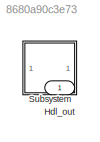
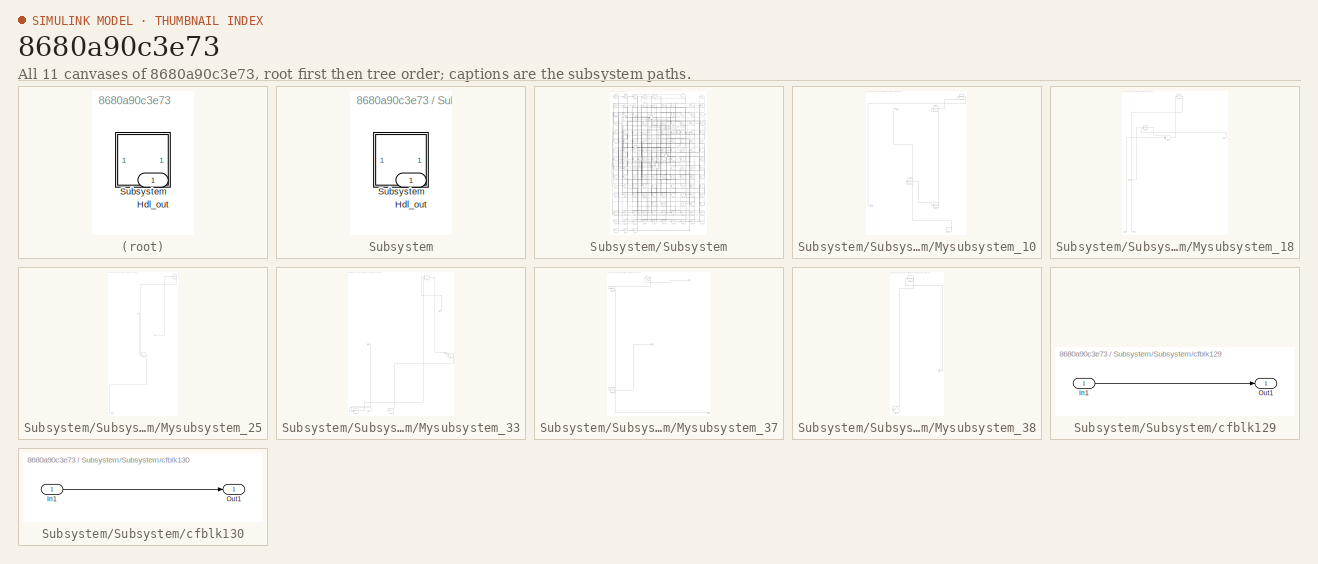
[diagram: thumbnail index - all 11 canvases of the model, root first then tree order]
MODEL slx_8680a90c3e73
KIND model
CONFIG AbsTol = auto
CONFIG EnableMultiTasking = off
CONFIG FixedStep = auto
CONFIG MaxStep = auto
CONFIG MinStep = auto
CONFIG RelTol = 1e-3
CONFIG SampleTimeConstraint = Unconstrained
CONFIG SolverName = VariableStepAuto
CONFIG StartTime = 0.0
CONFIG StopTime = 10.0
BLOCK [Outport] Hdl_out
  OutDataTypeStr = uint8
BLOCK [SubSystem] Subsystem
BLOCK [Outport] Subsystem/Hdl_out
  OutDataTypeStr = uint8
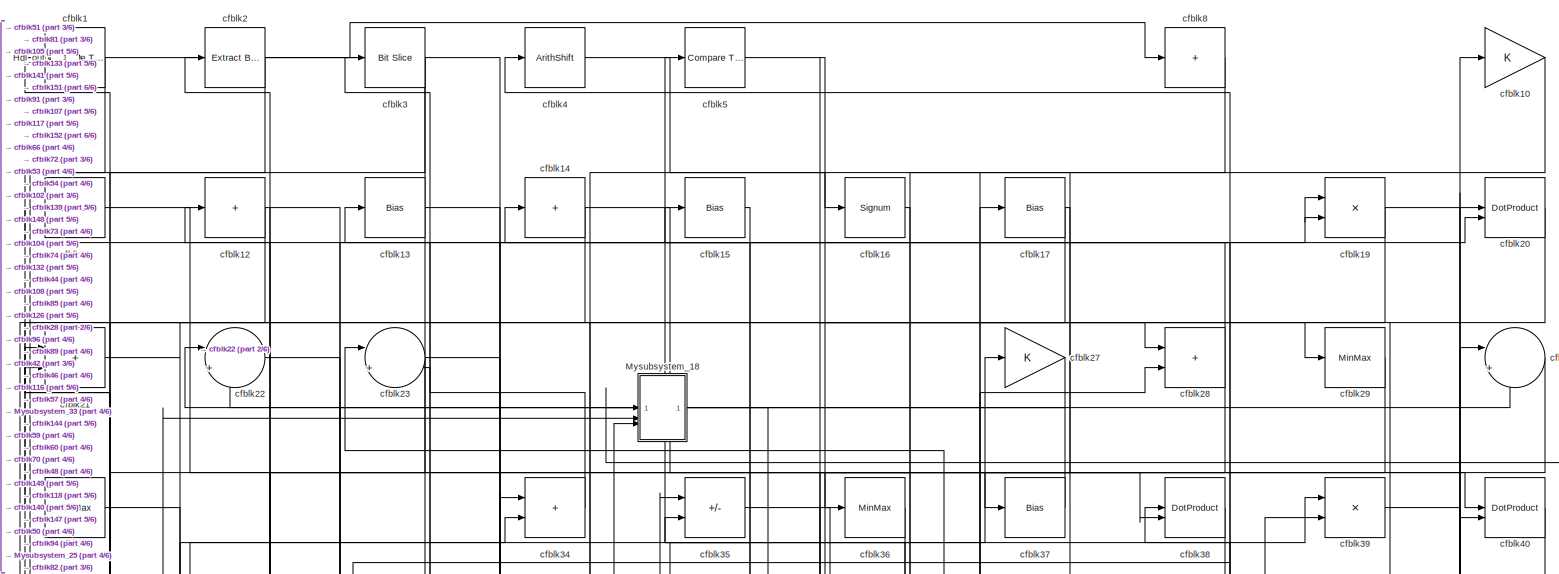
[diagram: Subsystem/Subsystem - part 1/6, full width, top band]
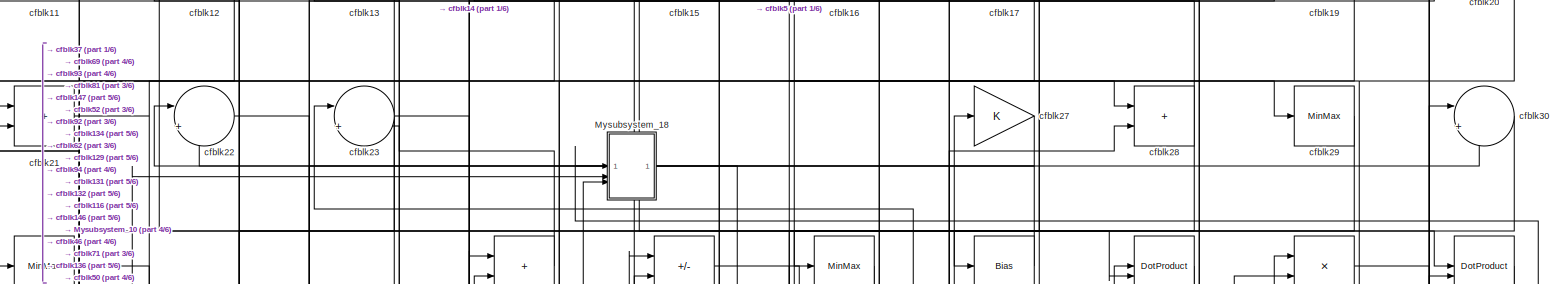
[diagram: Subsystem/Subsystem - part 2/6, full width, top band]
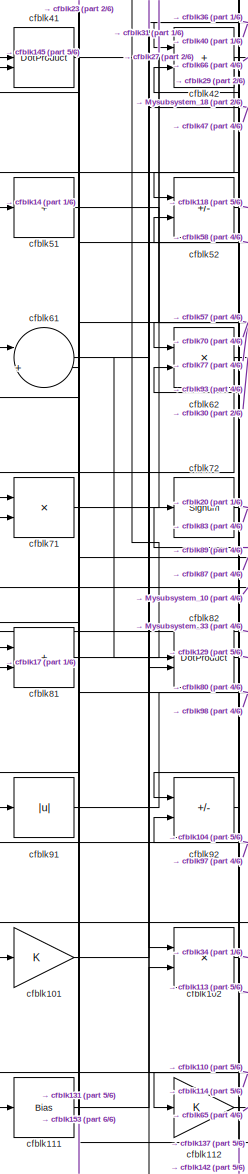
[diagram: Subsystem/Subsystem - part 3/6, middle left region]
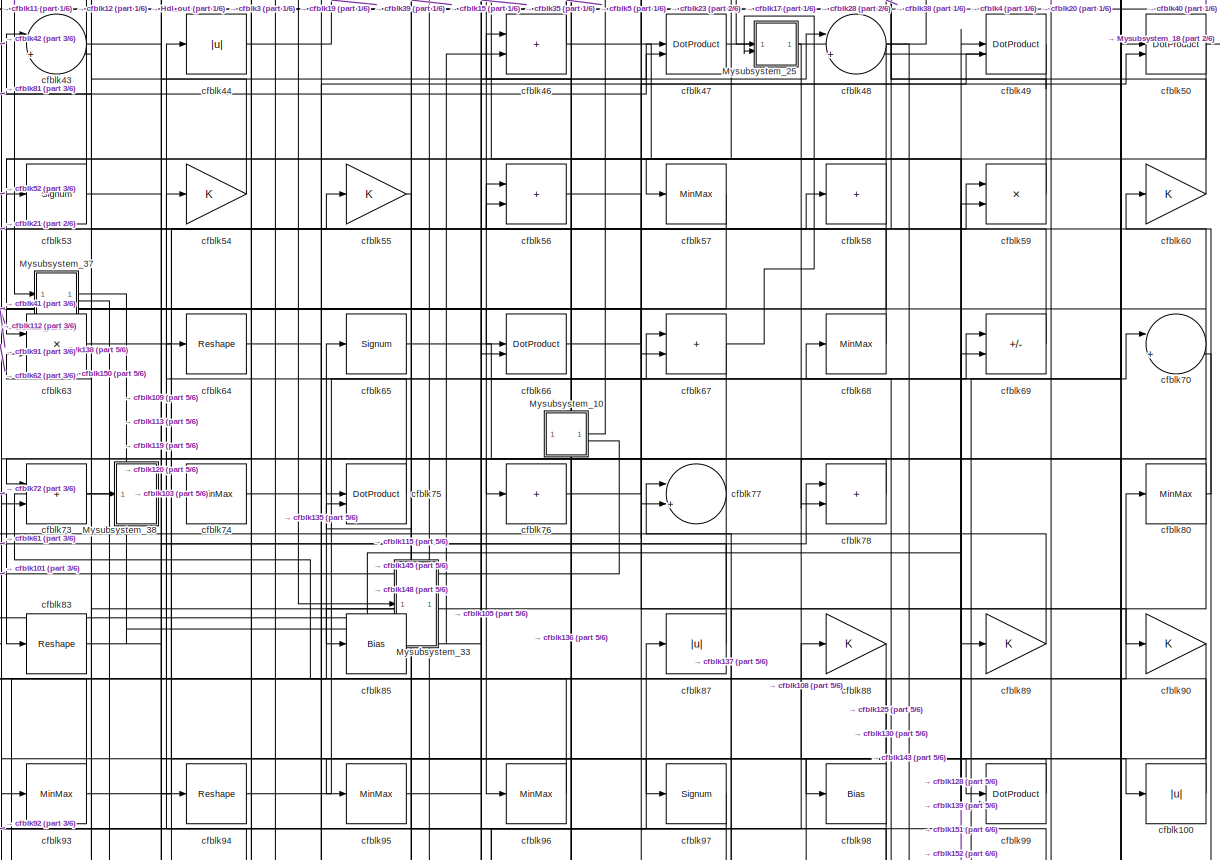
[diagram: Subsystem/Subsystem - part 4/6, full width, middle band]
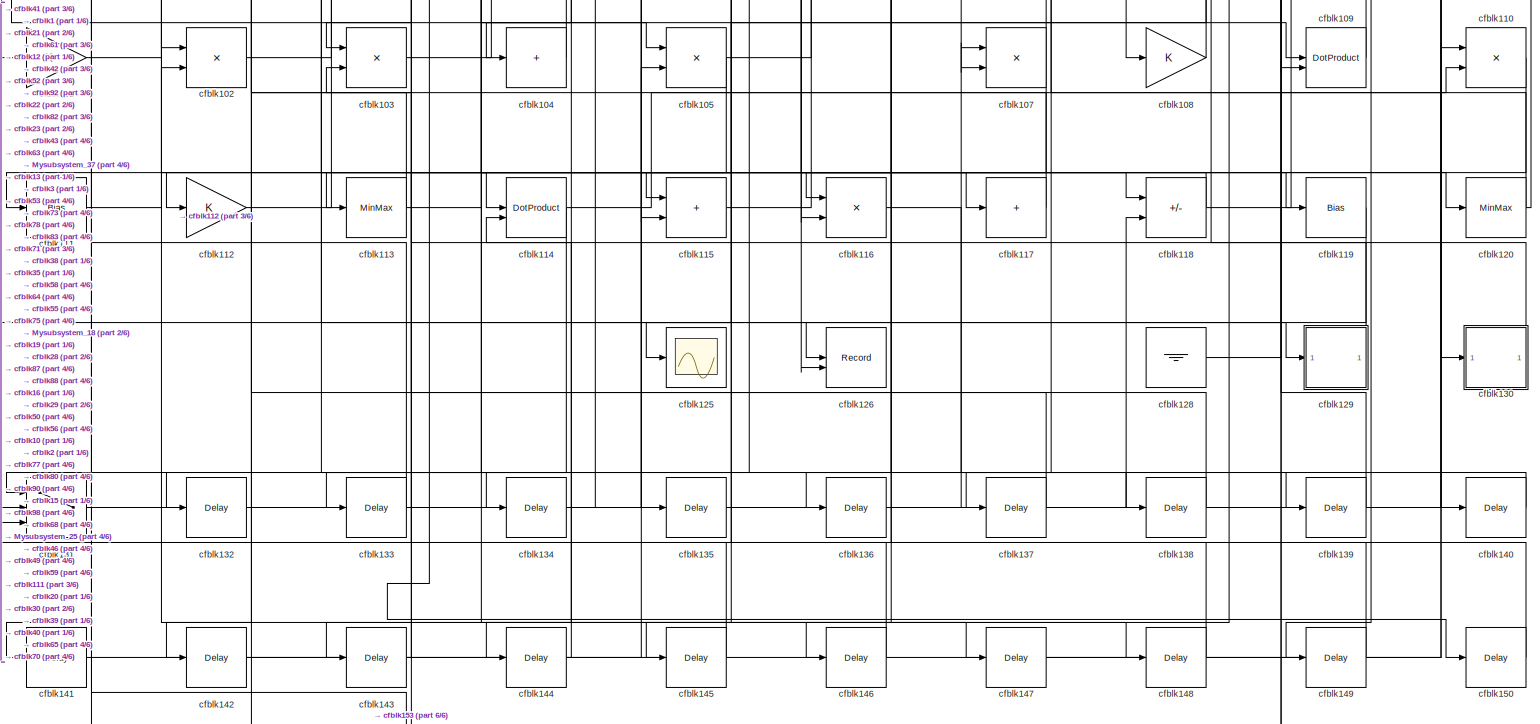
[diagram: Subsystem/Subsystem - part 5/6, full width, bottom band]
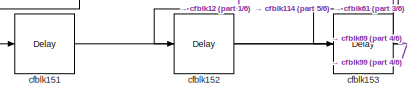
[diagram: Subsystem/Subsystem - part 6/6, bottom left region]
BLOCK [SubSystem] Subsystem/Subsystem
BLOCK [Outport] Subsystem/Subsystem/Hdl_out
  OutDataTypeStr = uint8
BLOCK [SubSystem] Subsystem/Subsystem/Mysubsystem_10
  RTWFcnName = Mysubsystem_10
  RTWFcnNameOpts = User specified
  RTWFileNameOpts = Use function name
  RTWSystemCode = Reusable function
  TreatAsAtomicUnit = on
BLOCK [Outport] Subsystem/Subsystem/Mysubsystem_10/Out1
BLOCK [Outport] Subsystem/Subsystem/Mysubsystem_10/Out2
  Port = 2
BLOCK [MinMax] Subsystem/Subsystem/Mysubsystem_10/cfblk106
BLOCK [Constant] Subsystem/Subsystem/Mysubsystem_10/cfblk127
  SampleTime = -1
BLOCK [MinMax] Subsystem/Subsystem/Mysubsystem_10/cfblk18
BLOCK [Reshape] Subsystem/Subsystem/Mysubsystem_10/cfblk26
BLOCK [MinMax] Subsystem/Subsystem/Mysubsystem_10/cfblk84
BLOCK [SubSystem] Subsystem/Subsystem/Mysubsystem_18
  RTWFcnName = Mysubsystem_18
  RTWFcnNameOpts = User specified
  RTWFileNameOpts = Use function name
  RTWSystemCode = Reusable function
  TreatAsAtomicUnit = on
BLOCK [Inport] Subsystem/Subsystem/Mysubsystem_18/In1
BLOCK [Inport] Subsystem/Subsystem/Mysubsystem_18/In2
  Port = 2
BLOCK [Inport] Subsystem/Subsystem/Mysubsystem_18/In3
  Port = 3
BLOCK [Outport] Subsystem/Subsystem/Mysubsystem_18/Y
BLOCK [DotProduct] Subsystem/Subsystem/Mysubsystem_18/cfblk33
  OutDataTypeStr = Inherit: Inherit via internal rule
BLOCK [Sum] Subsystem/Subsystem/Mysubsystem_18/cfblk45
  IconShape = rectangular
BLOCK [Reference] Subsystem/Subsystem/Mysubsystem_18/cfblk6  REF=hdlsllib/Logic and Bit
Operations/Detect Rise
Positive
  SourceBlock = hdlsllib/Logic and Bit\nOperations/Detect Rise\nPositive
  SourceType = Detect Rise Positive
BLOCK [SubSystem] Subsystem/Subsystem/Mysubsystem_25
  RTWFcnName = Mysubsystem_25
  RTWFcnNameOpts = User specified
  RTWFileNameOpts = Use function name
  RTWSystemCode = Reusable function
  TreatAsAtomicUnit = on
BLOCK [Inport] Subsystem/Subsystem/Mysubsystem_25/In1
BLOCK [Inport] Subsystem/Subsystem/Mysubsystem_25/In2
  Port = 2
BLOCK [Outport] Subsystem/Subsystem/Mysubsystem_25/Out1
BLOCK [Product] Subsystem/Subsystem/Mysubsystem_25/cfblk86
  Inputs = */
  RndMeth = Zero
  SaturateOnIntegerOverflow = on
BLOCK [Signum] Subsystem/Subsystem/Mysubsystem_25/cfblk9
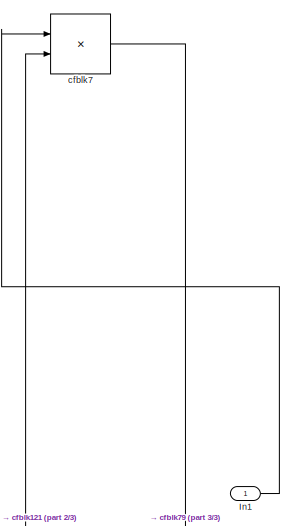
[diagram: Subsystem/Subsystem/Mysubsystem_33 - part 1/3, top right region]
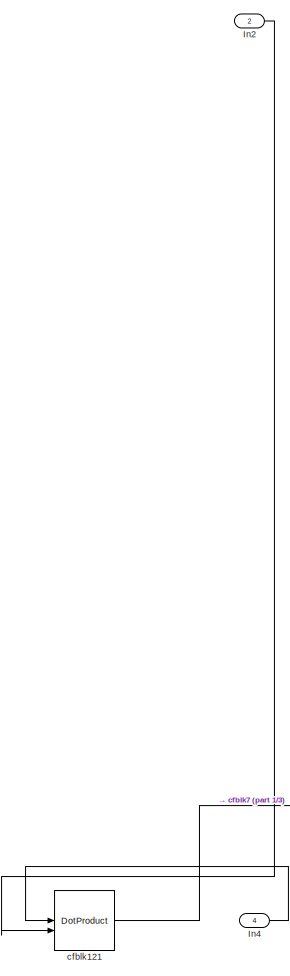
[diagram: Subsystem/Subsystem/Mysubsystem_33 - part 2/3, bottom left region]
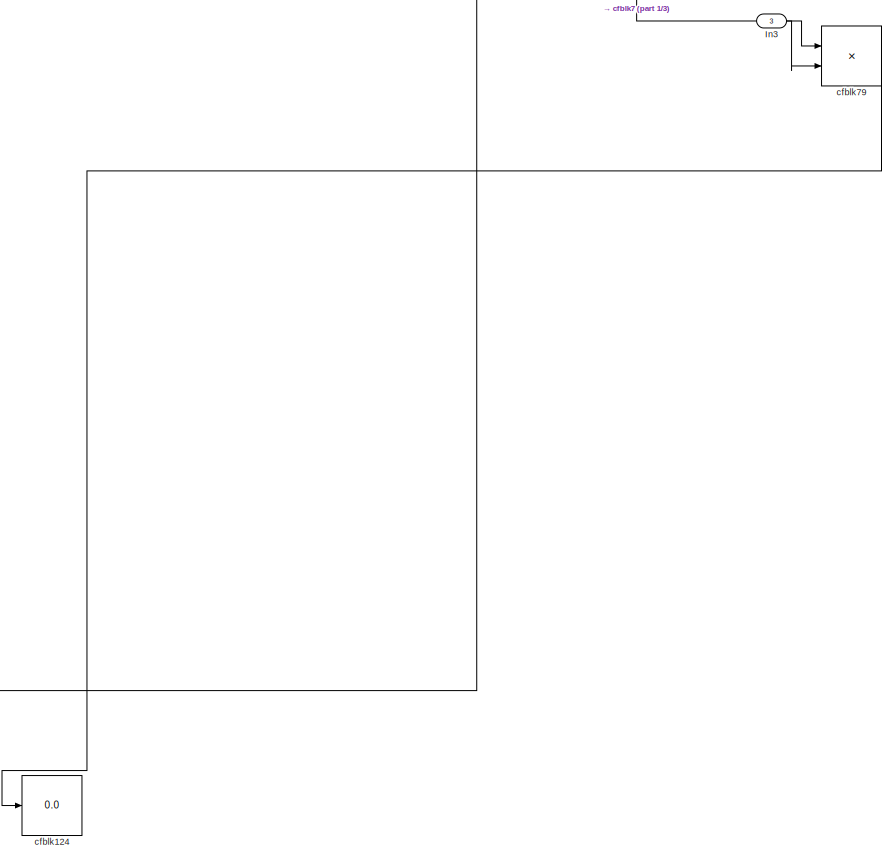
[diagram: Subsystem/Subsystem/Mysubsystem_33 - part 3/3, bottom right region]
BLOCK [SubSystem] Subsystem/Subsystem/Mysubsystem_33
  RTWFcnName = Mysubsystem_33
  RTWFcnNameOpts = User specified
  RTWFileNameOpts = Use function name
  RTWSystemCode = Reusable function
  TreatAsAtomicUnit = on
BLOCK [Inport] Subsystem/Subsystem/Mysubsystem_33/In1
BLOCK [Inport] Subsystem/Subsystem/Mysubsystem_33/In2
  Port = 2
BLOCK [Inport] Subsystem/Subsystem/Mysubsystem_33/In3
  Port = 3
BLOCK [Inport] Subsystem/Subsystem/Mysubsystem_33/In4
  Port = 4
BLOCK [DotProduct] Subsystem/Subsystem/Mysubsystem_33/cfblk121
  OutDataTypeStr = Inherit: Inherit via internal rule
BLOCK [Display] Subsystem/Subsystem/Mysubsystem_33/cfblk124
  Decimation = 1
BLOCK [Product] Subsystem/Subsystem/Mysubsystem_33/cfblk7
  Inputs = */
  RndMeth = Zero
  SaturateOnIntegerOverflow = on
BLOCK [Product] Subsystem/Subsystem/Mysubsystem_33/cfblk79
  Inputs = */
  RndMeth = Zero
  SaturateOnIntegerOverflow = on
BLOCK [SubSystem] Subsystem/Subsystem/Mysubsystem_37
  RTWFcnName = Mysubsystem_37
  RTWFcnNameOpts = User specified
  RTWFileNameOpts = Use function name
  RTWSystemCode = Reusable function
  TreatAsAtomicUnit = on
BLOCK [Inport] Subsystem/Subsystem/Mysubsystem_37/In1
BLOCK [Outport] Subsystem/Subsystem/Mysubsystem_37/Out1
BLOCK [Outport] Subsystem/Subsystem/Mysubsystem_37/Out2
  Port = 2
BLOCK [Bias] Subsystem/Subsystem/Mysubsystem_37/cfblk122
  Bias = 0.0
  SaturateOnIntegerOverflow = off
BLOCK [Gain] Subsystem/Subsystem/Mysubsystem_37/cfblk25
BLOCK [MinMax] Subsystem/Subsystem/Mysubsystem_37/cfblk32
BLOCK [SubSystem] Subsystem/Subsystem/Mysubsystem_38
  RTWFcnName = Mysubsystem_38
  RTWFcnNameOpts = User specified
  RTWFileNameOpts = Use function name
  RTWSystemCode = Reusable function
  TreatAsAtomicUnit = on
BLOCK [Inport] Subsystem/Subsystem/Mysubsystem_38/In1
BLOCK [Terminator] Subsystem/Subsystem/Mysubsystem_38/cfblk123
BLOCK [Reshape] Subsystem/Subsystem/Mysubsystem_38/cfblk24
BLOCK [Reference] Subsystem/Subsystem/cfblk1  REF=hdlsllib/Logic and Bit
Operations/Compare
To Zero
  SourceBlock = hdlsllib/Logic and Bit\nOperations/Compare\nTo Zero
  SourceType = Compare To Zero
BLOCK [Gain] Subsystem/Subsystem/cfblk10
  OutDataTypeStr = uint8
BLOCK [Abs] Subsystem/Subsystem/cfblk100
  OutDataTypeStr = uint8
  SaturateOnIntegerOverflow = off
BLOCK [Gain] Subsystem/Subsystem/cfblk101
  OutDataTypeStr = uint8
BLOCK [Product] Subsystem/Subsystem/cfblk102
  Inputs = */
  OutDataTypeStr = uint8
  RndMeth = Zero
  SaturateOnIntegerOverflow = on
BLOCK [Product] Subsystem/Subsystem/cfblk103
  Inputs = */
  OutDataTypeStr = uint8
  RndMeth = Zero
  SaturateOnIntegerOverflow = on
BLOCK [Sum] Subsystem/Subsystem/cfblk104
  IconShape = rectangular
  Inputs = +
  OutDataTypeStr = uint8
BLOCK [Product] Subsystem/Subsystem/cfblk105
  Inputs = */
  OutDataTypeStr = uint8
  RndMeth = Zero
  SaturateOnIntegerOverflow = on
BLOCK [Product] Subsystem/Subsystem/cfblk107
  Inputs = */
  OutDataTypeStr = uint8
  RndMeth = Zero
  SaturateOnIntegerOverflow = on
BLOCK [Gain] Subsystem/Subsystem/cfblk108
  OutDataTypeStr = uint8
BLOCK [DotProduct] Subsystem/Subsystem/cfblk109
  OutDataTypeStr = uint8
BLOCK [MinMax] Subsystem/Subsystem/cfblk11
  OutDataTypeStr = uint8
BLOCK [Product] Subsystem/Subsystem/cfblk110
  Inputs = */
  OutDataTypeStr = uint8
  RndMeth = Zero
  SaturateOnIntegerOverflow = on
BLOCK [Bias] Subsystem/Subsystem/cfblk111
  Bias = 0.0
  SaturateOnIntegerOverflow = off
BLOCK [Gain] Subsystem/Subsystem/cfblk112
  OutDataTypeStr = uint8
BLOCK [MinMax] Subsystem/Subsystem/cfblk113
  OutDataTypeStr = uint8
BLOCK [DotProduct] Subsystem/Subsystem/cfblk114
  OutDataTypeStr = uint8
BLOCK [Sum] Subsystem/Subsystem/cfblk115
  IconShape = rectangular
  OutDataTypeStr = uint8
BLOCK [Product] Subsystem/Subsystem/cfblk116
  Inputs = */
  OutDataTypeStr = uint8
  RndMeth = Zero
  SaturateOnIntegerOverflow = on
BLOCK [Sum] Subsystem/Subsystem/cfblk117
  IconShape = rectangular
  Inputs = +
  OutDataTypeStr = uint8
BLOCK [Sum] Subsystem/Subsystem/cfblk118
  IconShape = rectangular
  Inputs = +-
  OutDataTypeStr = uint8
BLOCK [Bias] Subsystem/Subsystem/cfblk119
  Bias = 0.0
  SaturateOnIntegerOverflow = off
BLOCK [Sum] Subsystem/Subsystem/cfblk12
  IconShape = rectangular
  Inputs = +
  OutDataTypeStr = uint8
BLOCK [MinMax] Subsystem/Subsystem/cfblk120
  OutDataTypeStr = uint8
BLOCK [Scope] Subsystem/Subsystem/cfblk125
  Floating = off
  NumInputPorts = 1
  ScopeSpecificationString = Simulink.scopes.TimeScopeBlockCfg('CurrentConfiguration', extmgr.ConfigurationSet(extmgr.Configuration('Core','General UI',true),extmgr.Configuration('Core','Source UI',true),extmgr.Configuration('Sources','WiredSimulink',true,'DataLoggingSaveFormat','Array','DataLoggingLimitDataPoints',true,'DataLoggingDecimation','1'),extmgr.Configuration('Visuals','Time Domain',true,'DisplayPropertyDefaults',st...<+829ch>
BLOCK [Record] Subsystem/Subsystem/cfblk126
  CompatibilityTag = XY
  FileSettingsInternal = {"entries":[{"content":{"excelSettings":{"content":{},"type":"Streamout.ExcelSettings"}},"type":"Streamout.FileSettingStorage","uuid":""}],"packageUris":["http:\/\/schema.mathworks.com\/mf0\/streamout_blocks\/R2020a"],"version":"1.0"}
  Layout = [1 1]
  SignalsInternal = {"entries":[{"content":{"signals":[{"content":{"blockPath":[],"dimensions":[1],"domain":"","lineColor":"#a2142f","plots":[1],"port":1,"signalID":38922,"signalName":"cfblk119"},"type":"RecordBlkView.Signal","uuid":""},{"content":{"blockPath":[],"dimensions":[1],"domain":"","lineColor":"#139fff","plots":[1],"port":2,"signalID":38925,"signalName":"cfblk19"},"type":"RecordBlkView.Signal","uuid":""}]},...<+143ch>
  VisualizationBindings = {"xyplotplugin":{"info":[{"series":[{"bindingParametersList":[{"parameter":"X-Axis","signalID":38922,"signalName":"cfblk119"},{"parameter":"Y-Axis","signalID":38925,"signalName":"cfblk19"}],"seriesID":1723}],"subplotID":1}]}}
  st = -1
BLOCK [Ground] Subsystem/Subsystem/cfblk128
BLOCK [SubSystem] Subsystem/Subsystem/cfblk129
  LibrarySourceBlock = hdlsllib/Ports &\nSubsystems/Subsystem
BLOCK [Inport] Subsystem/Subsystem/cfblk129/In1
BLOCK [Outport] Subsystem/Subsystem/cfblk129/Out1
BLOCK [Bias] Subsystem/Subsystem/cfblk13
  Bias = 0.0
  SaturateOnIntegerOverflow = off
BLOCK [SubSystem] Subsystem/Subsystem/cfblk130
  LibrarySourceBlock = hdlsllib/Ports &\nSubsystems/Subsystem
BLOCK [Inport] Subsystem/Subsystem/cfblk130/In1
BLOCK [Outport] Subsystem/Subsystem/cfblk130/Out1
BLOCK [Switch] Subsystem/Subsystem/cfblk131
  InputSameDT = off
  OutDataTypeStr = uint8
  SaturateOnIntegerOverflow = off
BLOCK [Delay] Subsystem/Subsystem/cfblk132
  InputPortMap = u0
  SampleTime = 1
BLOCK [Delay] Subsystem/Subsystem/cfblk133
  InputPortMap = u0
  SampleTime = 1
BLOCK [Delay] Subsystem/Subsystem/cfblk134
  InputPortMap = u0
  SampleTime = 1
BLOCK [Delay] Subsystem/Subsystem/cfblk135
  InputPortMap = u0
  SampleTime = 1
BLOCK [Delay] Subsystem/Subsystem/cfblk136
  InputPortMap = u0
  SampleTime = 1
BLOCK [Delay] Subsystem/Subsystem/cfblk137
  InputPortMap = u0
  SampleTime = 1
BLOCK [Delay] Subsystem/Subsystem/cfblk138
  InputPortMap = u0
  SampleTime = 1
BLOCK [Delay] Subsystem/Subsystem/cfblk139
  InputPortMap = u0
  SampleTime = 1
BLOCK [Sum] Subsystem/Subsystem/cfblk14
  IconShape = rectangular
  Inputs = +
  OutDataTypeStr = uint8
BLOCK [Delay] Subsystem/Subsystem/cfblk140
  InputPortMap = u0
  SampleTime = 1
BLOCK [Delay] Subsystem/Subsystem/cfblk141
  InputPortMap = u0
  SampleTime = 1
BLOCK [Delay] Subsystem/Subsystem/cfblk142
  InputPortMap = u0
  SampleTime = 1
BLOCK [Delay] Subsystem/Subsystem/cfblk143
  InputPortMap = u0
  SampleTime = 1
BLOCK [Delay] Subsystem/Subsystem/cfblk144
  InputPortMap = u0
  SampleTime = 1
BLOCK [Delay] Subsystem/Subsystem/cfblk145
  InputPortMap = u0
  SampleTime = 1
BLOCK [Delay] Subsystem/Subsystem/cfblk146
  InputPortMap = u0
  SampleTime = 1
BLOCK [Delay] Subsystem/Subsystem/cfblk147
  InputPortMap = u0
  SampleTime = 1
BLOCK [Delay] Subsystem/Subsystem/cfblk148
  InputPortMap = u0
  SampleTime = 1
BLOCK [Delay] Subsystem/Subsystem/cfblk149
  InputPortMap = u0
  SampleTime = 1
BLOCK [Bias] Subsystem/Subsystem/cfblk15
  Bias = 0.0
  SaturateOnIntegerOverflow = off
BLOCK [Delay] Subsystem/Subsystem/cfblk150
  InputPortMap = u0
  SampleTime = 1
BLOCK [Delay] Subsystem/Subsystem/cfblk151
  InputPortMap = u0
  SampleTime = 1
BLOCK [Delay] Subsystem/Subsystem/cfblk152
  InputPortMap = u0
  SampleTime = 1
BLOCK [Delay] Subsystem/Subsystem/cfblk153
  InputPortMap = u0
  SampleTime = 1
BLOCK [Signum] Subsystem/Subsystem/cfblk16
BLOCK [Bias] Subsystem/Subsystem/cfblk17
  Bias = 0.0
  SaturateOnIntegerOverflow = off
BLOCK [Product] Subsystem/Subsystem/cfblk19
  Inputs = */
  OutDataTypeStr = uint8
  RndMeth = Zero
  SaturateOnIntegerOverflow = on
BLOCK [Reference] Subsystem/Subsystem/cfblk2  REF=simulink/Logic and Bit
Operations/Extract Bits
  LibrarySourceBlock = hdlsllib/Logic and Bit\nOperations/Extract Bits
  SourceBlock = simulink/Logic and Bit\nOperations/Extract Bits
  SourceType = Extract Bits
BLOCK [DotProduct] Subsystem/Subsystem/cfblk20
  OutDataTypeStr = uint8
BLOCK [Sum] Subsystem/Subsystem/cfblk21
  IconShape = rectangular
  OutDataTypeStr = uint8
BLOCK [Sum] Subsystem/Subsystem/cfblk22
  Inputs = |++
  OutDataTypeStr = uint8
BLOCK [Sum] Subsystem/Subsystem/cfblk23
  Inputs = |++
  OutDataTypeStr = uint8
BLOCK [Gain] Subsystem/Subsystem/cfblk27
  OutDataTypeStr = uint8
BLOCK [Sum] Subsystem/Subsystem/cfblk28
  IconShape = rectangular
  OutDataTypeStr = uint8
BLOCK [MinMax] Subsystem/Subsystem/cfblk29
  OutDataTypeStr = uint8
BLOCK [Reference] Subsystem/Subsystem/cfblk3  REF=hdlsllib/Logic and Bit
Operations/Bit Slice
  SourceBlock = hdlsllib/Logic and Bit\nOperations/Bit Slice
  SourceType = Bit Slice
BLOCK [Sum] Subsystem/Subsystem/cfblk30
  Inputs = |++
  OutDataTypeStr = uint8
BLOCK [MinMax] Subsystem/Subsystem/cfblk31
  OutDataTypeStr = uint8
BLOCK [Sum] Subsystem/Subsystem/cfblk34
  IconShape = rectangular
  OutDataTypeStr = uint8
BLOCK [Sum] Subsystem/Subsystem/cfblk35
  IconShape = rectangular
  Inputs = +-
  OutDataTypeStr = uint8
BLOCK [MinMax] Subsystem/Subsystem/cfblk36
  OutDataTypeStr = uint8
BLOCK [Bias] Subsystem/Subsystem/cfblk37
  Bias = 0.0
  SaturateOnIntegerOverflow = off
BLOCK [DotProduct] Subsystem/Subsystem/cfblk38
  OutDataTypeStr = uint8
BLOCK [Product] Subsystem/Subsystem/cfblk39
  Inputs = */
  OutDataTypeStr = uint8
  RndMeth = Zero
  SaturateOnIntegerOverflow = on
BLOCK [ArithShift] Subsystem/Subsystem/cfblk4
  BitShiftNumber = 8
  InputPortMap = u0
BLOCK [DotProduct] Subsystem/Subsystem/cfblk40
  OutDataTypeStr = uint8
BLOCK [DotProduct] Subsystem/Subsystem/cfblk41
  OutDataTypeStr = uint8
BLOCK [Sum] Subsystem/Subsystem/cfblk42
  IconShape = rectangular
  OutDataTypeStr = uint8
BLOCK [Sum] Subsystem/Subsystem/cfblk43
  Inputs = |++
  OutDataTypeStr = uint8
BLOCK [Abs] Subsystem/Subsystem/cfblk44
  OutDataTypeStr = uint8
  SaturateOnIntegerOverflow = off
BLOCK [Sum] Subsystem/Subsystem/cfblk46
  IconShape = rectangular
  OutDataTypeStr = uint8
BLOCK [DotProduct] Subsystem/Subsystem/cfblk47
  OutDataTypeStr = uint8
BLOCK [Sum] Subsystem/Subsystem/cfblk48
  Inputs = |++
  OutDataTypeStr = uint8
BLOCK [DotProduct] Subsystem/Subsystem/cfblk49
  OutDataTypeStr = uint8
BLOCK [Reference] Subsystem/Subsystem/cfblk5  REF=hdlsllib/Logic and Bit
Operations/Compare
To Constant
  SourceBlock = hdlsllib/Logic and Bit\nOperations/Compare\nTo Constant
  SourceType = Compare To Constant
BLOCK [DotProduct] Subsystem/Subsystem/cfblk50
  OutDataTypeStr = uint8
BLOCK [Sum] Subsystem/Subsystem/cfblk51
  IconShape = rectangular
  Inputs = +
  OutDataTypeStr = uint8
BLOCK [Sum] Subsystem/Subsystem/cfblk52
  IconShape = rectangular
  Inputs = +-
  OutDataTypeStr = uint8
BLOCK [Signum] Subsystem/Subsystem/cfblk53
BLOCK [Gain] Subsystem/Subsystem/cfblk54
  OutDataTypeStr = uint8
BLOCK [Gain] Subsystem/Subsystem/cfblk55
  OutDataTypeStr = uint8
BLOCK [Sum] Subsystem/Subsystem/cfblk56
  IconShape = rectangular
  OutDataTypeStr = uint8
BLOCK [MinMax] Subsystem/Subsystem/cfblk57
  OutDataTypeStr = uint8
BLOCK [Sum] Subsystem/Subsystem/cfblk58
  IconShape = rectangular
  Inputs = +
  OutDataTypeStr = uint8
BLOCK [Product] Subsystem/Subsystem/cfblk59
  Inputs = */
  OutDataTypeStr = uint8
  RndMeth = Zero
  SaturateOnIntegerOverflow = on
BLOCK [Gain] Subsystem/Subsystem/cfblk60
  OutDataTypeStr = uint8
BLOCK [Sum] Subsystem/Subsystem/cfblk61
  Inputs = |++
  OutDataTypeStr = uint8
BLOCK [Product] Subsystem/Subsystem/cfblk62
  Inputs = */
  OutDataTypeStr = uint8
  RndMeth = Zero
  SaturateOnIntegerOverflow = on
BLOCK [Product] Subsystem/Subsystem/cfblk63
  Inputs = */
  OutDataTypeStr = uint8
  RndMeth = Zero
  SaturateOnIntegerOverflow = on
BLOCK [Reshape] Subsystem/Subsystem/cfblk64
BLOCK [Signum] Subsystem/Subsystem/cfblk65
BLOCK [DotProduct] Subsystem/Subsystem/cfblk66
  OutDataTypeStr = uint8
BLOCK [Sum] Subsystem/Subsystem/cfblk67
  IconShape = rectangular
  OutDataTypeStr = uint8
BLOCK [MinMax] Subsystem/Subsystem/cfblk68
  OutDataTypeStr = uint8
BLOCK [Sum] Subsystem/Subsystem/cfblk69
  IconShape = rectangular
  Inputs = +-
  OutDataTypeStr = uint8
BLOCK [Sum] Subsystem/Subsystem/cfblk70
  Inputs = |++
  OutDataTypeStr = uint8
BLOCK [Product] Subsystem/Subsystem/cfblk71
  Inputs = */
  OutDataTypeStr = uint8
  RndMeth = Zero
  SaturateOnIntegerOverflow = on
BLOCK [Signum] Subsystem/Subsystem/cfblk72
BLOCK [Sum] Subsystem/Subsystem/cfblk73
  IconShape = rectangular
  OutDataTypeStr = uint8
BLOCK [MinMax] Subsystem/Subsystem/cfblk74
  OutDataTypeStr = uint8
BLOCK [DotProduct] Subsystem/Subsystem/cfblk75
  OutDataTypeStr = uint8
BLOCK [Sum] Subsystem/Subsystem/cfblk76
  IconShape = rectangular
  Inputs = +
  OutDataTypeStr = uint8
BLOCK [Sum] Subsystem/Subsystem/cfblk77
  Inputs = |++
  OutDataTypeStr = uint8
BLOCK [Sum] Subsystem/Subsystem/cfblk78
  IconShape = rectangular
  OutDataTypeStr = uint8
BLOCK [Sum] Subsystem/Subsystem/cfblk8
  IconShape = rectangular
  Inputs = +
  OutDataTypeStr = uint8
BLOCK [MinMax] Subsystem/Subsystem/cfblk80
  OutDataTypeStr = uint8
BLOCK [Sum] Subsystem/Subsystem/cfblk81
  IconShape = rectangular
  OutDataTypeStr = uint8
BLOCK [DotProduct] Subsystem/Subsystem/cfblk82
  OutDataTypeStr = uint8
BLOCK [Reshape] Subsystem/Subsystem/cfblk83
BLOCK [Bias] Subsystem/Subsystem/cfblk85
  Bias = 0.0
  SaturateOnIntegerOverflow = off
BLOCK [Abs] Subsystem/Subsystem/cfblk87
  OutDataTypeStr = uint8
  SaturateOnIntegerOverflow = off
BLOCK [Gain] Subsystem/Subsystem/cfblk88
  OutDataTypeStr = uint8
BLOCK [Gain] Subsystem/Subsystem/cfblk89
  OutDataTypeStr = uint8
BLOCK [Gain] Subsystem/Subsystem/cfblk90
  OutDataTypeStr = uint8
BLOCK [Abs] Subsystem/Subsystem/cfblk91
  OutDataTypeStr = uint8
  SaturateOnIntegerOverflow = off
BLOCK [Sum] Subsystem/Subsystem/cfblk92
  IconShape = rectangular
  Inputs = +-
  OutDataTypeStr = uint8
BLOCK [MinMax] Subsystem/Subsystem/cfblk93
  OutDataTypeStr = uint8
BLOCK [Reshape] Subsystem/Subsystem/cfblk94
BLOCK [MinMax] Subsystem/Subsystem/cfblk95
  OutDataTypeStr = uint8
BLOCK [MinMax] Subsystem/Subsystem/cfblk96
  OutDataTypeStr = uint8
BLOCK [Signum] Subsystem/Subsystem/cfblk97
BLOCK [Bias] Subsystem/Subsystem/cfblk98
  Bias = 0.0
  SaturateOnIntegerOverflow = off
BLOCK [DotProduct] Subsystem/Subsystem/cfblk99
  OutDataTypeStr = uint8
LINE Subsystem/Subsystem/Mysubsystem_10/cfblk106:1 -> Subsystem/Subsystem/Mysubsystem_10/cfblk26:1
LINE Subsystem/Subsystem/Mysubsystem_10/cfblk127:1 -> Subsystem/Subsystem/Mysubsystem_10/cfblk84:1
LINE Subsystem/Subsystem/Mysubsystem_10/cfblk18:1 -> Subsystem/Subsystem/Mysubsystem_10/Out2:1
LINE Subsystem/Subsystem/Mysubsystem_10/cfblk26:1 -> Subsystem/Subsystem/Mysubsystem_10/cfblk18:1
NET Subsystem/Subsystem/Mysubsystem_10/cfblk84:1 -> Subsystem/Subsystem/Mysubsystem_10/Out1:1, Subsystem/Subsystem/Mysubsystem_10/cfblk106:1
LINE Subsystem/Subsystem/Mysubsystem_10:1 -> Subsystem/Subsystem/cfblk23:1
LINE Subsystem/Subsystem/Mysubsystem_10:2 -> Subsystem/Subsystem/cfblk101:1
LINE Subsystem/Subsystem/Mysubsystem_18/In1:1 -> Subsystem/Subsystem/Mysubsystem_18/cfblk33:2
LINE Subsystem/Subsystem/Mysubsystem_18/In2:1 -> Subsystem/Subsystem/Mysubsystem_18/cfblk33:1
LINE Subsystem/Subsystem/Mysubsystem_18/In3:1 -> Subsystem/Subsystem/Mysubsystem_18/cfblk45:1
LINE Subsystem/Subsystem/Mysubsystem_18/cfblk33:1 -> Subsystem/Subsystem/Mysubsystem_18/cfblk45:2
LINE Subsystem/Subsystem/Mysubsystem_18/cfblk45:1 -> Subsystem/Subsystem/Mysubsystem_18/cfblk6:1
LINE Subsystem/Subsystem/Mysubsystem_18/cfblk6:1 -> Subsystem/Subsystem/Mysubsystem_18/Y:1
LINE Subsystem/Subsystem/Mysubsystem_18:1 -> Subsystem/Subsystem/cfblk132:1
LINE Subsystem/Subsystem/Mysubsystem_25/In1:1 -> Subsystem/Subsystem/Mysubsystem_25/cfblk86:2
LINE Subsystem/Subsystem/Mysubsystem_25/In2:1 -> Subsystem/Subsystem/Mysubsystem_25/cfblk9:1
LINE Subsystem/Subsystem/Mysubsystem_25/cfblk86:1 -> Subsystem/Subsystem/Mysubsystem_25/Out1:1
LINE Subsystem/Subsystem/Mysubsystem_25/cfblk9:1 -> Subsystem/Subsystem/Mysubsystem_25/cfblk86:1
LINE Subsystem/Subsystem/Mysubsystem_25:1 -> Subsystem/Subsystem/cfblk143:1
LINE Subsystem/Subsystem/Mysubsystem_33/In1:1 -> Subsystem/Subsystem/Mysubsystem_33/cfblk7:1
LINE Subsystem/Subsystem/Mysubsystem_33/In2:1 -> Subsystem/Subsystem/Mysubsystem_33/cfblk121:2
LINE Subsystem/Subsystem/Mysubsystem_33/In3:1 -> Subsystem/Subsystem/Mysubsystem_33/cfblk79:2
LINE Subsystem/Subsystem/Mysubsystem_33/In4:1 -> Subsystem/Subsystem/Mysubsystem_33/cfblk121:1
LINE Subsystem/Subsystem/Mysubsystem_33/cfblk121:1 -> Subsystem/Subsystem/Mysubsystem_33/cfblk7:2
LINE Subsystem/Subsystem/Mysubsystem_33/cfblk79:1 -> Subsystem/Subsystem/Mysubsystem_33/cfblk124:1
LINE Subsystem/Subsystem/Mysubsystem_33/cfblk7:1 -> Subsystem/Subsystem/Mysubsystem_33/cfblk79:1
LINE Subsystem/Subsystem/Mysubsystem_37/In1:1 -> Subsystem/Subsystem/Mysubsystem_37/cfblk25:1
LINE Subsystem/Subsystem/Mysubsystem_37/cfblk122:1 -> Subsystem/Subsystem/Mysubsystem_37/Out1:1
LINE Subsystem/Subsystem/Mysubsystem_37/cfblk25:1 -> Subsystem/Subsystem/Mysubsystem_37/cfblk32:1
NET Subsystem/Subsystem/Mysubsystem_37/cfblk32:1 -> Subsystem/Subsystem/Mysubsystem_37/Out2:1, Subsystem/Subsystem/Mysubsystem_37/cfblk122:1
LINE Subsystem/Subsystem/Mysubsystem_37:1 -> Subsystem/Subsystem/Mysubsystem_33:4
LINE Subsystem/Subsystem/Mysubsystem_37:2 -> Subsystem/Subsystem/cfblk150:1
LINE Subsystem/Subsystem/Mysubsystem_38/In1:1 -> Subsystem/Subsystem/Mysubsystem_38/cfblk24:1
LINE Subsystem/Subsystem/Mysubsystem_38/cfblk24:1 -> Subsystem/Subsystem/Mysubsystem_38/cfblk123:1
LINE Subsystem/Subsystem/cfblk100:1 -> Subsystem/Subsystem/cfblk44:1
LINE Subsystem/Subsystem/cfblk101:1 -> Subsystem/Subsystem/cfblk58:1
LINE Subsystem/Subsystem/cfblk102:1 -> Subsystem/Subsystem/cfblk34:1
LINE Subsystem/Subsystem/cfblk103:1 -> Subsystem/Subsystem/cfblk59:1
LINE Subsystem/Subsystem/cfblk104:1 -> Subsystem/Subsystem/cfblk71:1
NET Subsystem/Subsystem/cfblk105:1 -> Subsystem/Subsystem/cfblk113:1, Subsystem/Subsystem/cfblk88:1
NET Subsystem/Subsystem/cfblk107:1 -> Subsystem/Subsystem/cfblk133:1, Subsystem/Subsystem/cfblk2:1
NET Subsystem/Subsystem/cfblk108:1 -> Subsystem/Subsystem/cfblk15:1, Subsystem/Subsystem/cfblk35:2
LINE Subsystem/Subsystem/cfblk109:1 -> Subsystem/Subsystem/cfblk64:1
NET Subsystem/Subsystem/cfblk10:1 -> Subsystem/Subsystem/cfblk104:1, Subsystem/Subsystem/cfblk107:2, Subsystem/Subsystem/cfblk37:1
LINE Subsystem/Subsystem/cfblk110:1 -> Subsystem/Subsystem/cfblk112:1
LINE Subsystem/Subsystem/cfblk111:1 -> Subsystem/Subsystem/cfblk102:2
LINE Subsystem/Subsystem/cfblk112:1 -> Subsystem/Subsystem/cfblk65:1
NET Subsystem/Subsystem/cfblk113:1 -> Subsystem/Subsystem/cfblk52:2, Subsystem/Subsystem/cfblk78:1
NET Subsystem/Subsystem/cfblk114:1 -> Subsystem/Subsystem/cfblk110:2, Subsystem/Subsystem/cfblk153:1
LINE Subsystem/Subsystem/cfblk115:1 -> Subsystem/Subsystem/cfblk87:1
LINE Subsystem/Subsystem/cfblk116:1 -> Subsystem/Subsystem/cfblk138:1
LINE Subsystem/Subsystem/cfblk117:1 -> Subsystem/Subsystem/cfblk12:1
NET Subsystem/Subsystem/cfblk118:1 -> Subsystem/Subsystem/cfblk10:1, Subsystem/Subsystem/cfblk111:1
NET Subsystem/Subsystem/cfblk119:1 -> Subsystem/Subsystem/cfblk126:1, Subsystem/Subsystem/cfblk131:3
LINE Subsystem/Subsystem/cfblk11:1 -> Subsystem/Subsystem/cfblk40:1
NET Subsystem/Subsystem/cfblk120:1 -> Subsystem/Subsystem/cfblk70:2, Subsystem/Subsystem/cfblk77:1
LINE Subsystem/Subsystem/cfblk128:1 -> Subsystem/Subsystem/cfblk59:2
LINE Subsystem/Subsystem/cfblk129/In1:1 -> Subsystem/Subsystem/cfblk129/Out1:1
LINE Subsystem/Subsystem/cfblk129:1 -> Subsystem/Subsystem/cfblk23:2
NET Subsystem/Subsystem/cfblk12:1 -> Subsystem/Subsystem/cfblk151:1, Subsystem/Subsystem/cfblk152:1, Subsystem/Subsystem/cfblk66:1
LINE Subsystem/Subsystem/cfblk130/In1:1 -> Subsystem/Subsystem/cfblk130/Out1:1
LINE Subsystem/Subsystem/cfblk130:1 -> Subsystem/Subsystem/cfblk68:1
NET Subsystem/Subsystem/cfblk131:1 -> Subsystem/Subsystem/Mysubsystem_18:3, Subsystem/Subsystem/cfblk41:2
LINE Subsystem/Subsystem/cfblk132:1 -> Subsystem/Subsystem/cfblk35:1
LINE Subsystem/Subsystem/cfblk133:1 -> Subsystem/Subsystem/cfblk1:1
LINE Subsystem/Subsystem/cfblk134:1 -> Subsystem/Subsystem/cfblk107:1
LINE Subsystem/Subsystem/cfblk135:1 -> Subsystem/Subsystem/cfblk118:2
LINE Subsystem/Subsystem/cfblk136:1 -> Subsystem/Subsystem/cfblk30:1
LINE Subsystem/Subsystem/cfblk137:1 -> Subsystem/Subsystem/cfblk42:2
LINE Subsystem/Subsystem/cfblk138:1 -> Subsystem/Subsystem/cfblk63:2
LINE Subsystem/Subsystem/cfblk139:1 -> Subsystem/Subsystem/cfblk49:1
LINE Subsystem/Subsystem/cfblk13:1 -> Subsystem/Subsystem/cfblk139:1
LINE Subsystem/Subsystem/cfblk140:1 -> Subsystem/Subsystem/cfblk131:1
LINE Subsystem/Subsystem/cfblk141:1 -> Subsystem/Subsystem/cfblk105:2
LINE Subsystem/Subsystem/cfblk142:1 -> Subsystem/Subsystem/cfblk110:1
LINE Subsystem/Subsystem/cfblk143:1 -> Subsystem/Subsystem/cfblk43:1
LINE Subsystem/Subsystem/cfblk144:1 -> Subsystem/Subsystem/cfblk114:2
LINE Subsystem/Subsystem/cfblk145:1 -> Subsystem/Subsystem/cfblk41:1
LINE Subsystem/Subsystem/cfblk146:1 -> Subsystem/Subsystem/cfblk131:2
LINE Subsystem/Subsystem/cfblk147:1 -> Subsystem/Subsystem/cfblk40:2
LINE Subsystem/Subsystem/cfblk148:1 -> Subsystem/Subsystem/cfblk75:2
LINE Subsystem/Subsystem/cfblk149:1 -> Subsystem/Subsystem/cfblk103:2
NET Subsystem/Subsystem/cfblk14:1 -> Subsystem/Subsystem/cfblk38:2, Subsystem/Subsystem/cfblk51:1
LINE Subsystem/Subsystem/cfblk150:1 -> Subsystem/Subsystem/cfblk56:2
LINE Subsystem/Subsystem/cfblk151:1 -> Subsystem/Subsystem/cfblk69:2
LINE Subsystem/Subsystem/cfblk152:1 -> Subsystem/Subsystem/cfblk99:2
LINE Subsystem/Subsystem/cfblk153:1 -> Subsystem/Subsystem/cfblk61:2
LINE Subsystem/Subsystem/cfblk15:1 -> Subsystem/Subsystem/cfblk85:1
LINE Subsystem/Subsystem/cfblk16:1 -> Subsystem/Subsystem/cfblk116:1
NET Subsystem/Subsystem/cfblk17:1 -> Subsystem/Subsystem/cfblk57:1, Subsystem/Subsystem/cfblk81:2
NET Subsystem/Subsystem/cfblk19:1 -> Subsystem/Subsystem/cfblk126:2, Subsystem/Subsystem/cfblk50:1
LINE Subsystem/Subsystem/cfblk1:1 -> Subsystem/Subsystem/cfblk105:1
NET Subsystem/Subsystem/cfblk20:1 -> Subsystem/Subsystem/cfblk149:1, Subsystem/Subsystem/cfblk74:1
NET Subsystem/Subsystem/cfblk21:1 -> Subsystem/Subsystem/cfblk147:1, Subsystem/Subsystem/cfblk29:1
LINE Subsystem/Subsystem/cfblk22:1 -> Subsystem/Subsystem/cfblk134:1
NET Subsystem/Subsystem/cfblk23:1 -> Subsystem/Subsystem/cfblk81:1, Subsystem/Subsystem/cfblk94:1
LINE Subsystem/Subsystem/cfblk27:1 -> Subsystem/Subsystem/cfblk22:2
NET Subsystem/Subsystem/cfblk28:1 -> Subsystem/Subsystem/cfblk116:2, Subsystem/Subsystem/cfblk14:1
NET Subsystem/Subsystem/cfblk29:1 -> Subsystem/Subsystem/cfblk146:1, Subsystem/Subsystem/cfblk92:1
NET Subsystem/Subsystem/cfblk2:1 -> Subsystem/Subsystem/cfblk141:1, Subsystem/Subsystem/cfblk8:1
LINE Subsystem/Subsystem/cfblk30:1 -> Subsystem/Subsystem/cfblk52:1
LINE Subsystem/Subsystem/cfblk31:1 -> Subsystem/Subsystem/cfblk102:1
LINE Subsystem/Subsystem/cfblk34:1 -> Subsystem/Subsystem/cfblk13:1
NET Subsystem/Subsystem/cfblk35:1 -> Subsystem/Subsystem/cfblk117:1, Subsystem/Subsystem/cfblk89:1
LINE Subsystem/Subsystem/cfblk36:1 -> Subsystem/Subsystem/cfblk42:1
LINE Subsystem/Subsystem/cfblk37:1 -> Subsystem/Subsystem/cfblk22:1
NET Subsystem/Subsystem/cfblk38:1 -> Subsystem/Subsystem/Mysubsystem_33:1, Subsystem/Subsystem/cfblk144:1
LINE Subsystem/Subsystem/cfblk39:1 -> Subsystem/Subsystem/cfblk140:1
NET Subsystem/Subsystem/cfblk3:1 -> Subsystem/Subsystem/cfblk148:1, Subsystem/Subsystem/cfblk31:1
NET Subsystem/Subsystem/cfblk40:1 -> Subsystem/Subsystem/Mysubsystem_25:1, Subsystem/Subsystem/cfblk82:2
LINE Subsystem/Subsystem/cfblk41:1 -> Subsystem/Subsystem/cfblk77:2
NET Subsystem/Subsystem/cfblk42:1 -> Subsystem/Subsystem/cfblk66:2, Subsystem/Subsystem/cfblk71:2
NET Subsystem/Subsystem/cfblk43:1 -> Subsystem/Subsystem/cfblk47:2, Subsystem/Subsystem/cfblk67:2, Subsystem/Subsystem/cfblk99:1
LINE Subsystem/Subsystem/cfblk44:1 -> Subsystem/Subsystem/cfblk39:1
NET Subsystem/Subsystem/cfblk46:1 -> Subsystem/Subsystem/cfblk109:2, Subsystem/Subsystem/cfblk28:2, Subsystem/Subsystem/cfblk5:1
LINE Subsystem/Subsystem/cfblk47:1 -> Subsystem/Subsystem/cfblk100:1
NET Subsystem/Subsystem/cfblk48:1 -> Subsystem/Subsystem/cfblk39:2, Subsystem/Subsystem/cfblk63:1
LINE Subsystem/Subsystem/cfblk49:1 -> Subsystem/Subsystem/cfblk48:2
LINE Subsystem/Subsystem/cfblk4:1 -> Subsystem/Subsystem/cfblk16:1
NET Subsystem/Subsystem/cfblk50:1 -> Subsystem/Subsystem/Mysubsystem_18:1, Subsystem/Subsystem/cfblk136:1
LINE Subsystem/Subsystem/cfblk51:1 -> Subsystem/Subsystem/cfblk93:1
NET Subsystem/Subsystem/cfblk52:1 -> Subsystem/Subsystem/cfblk118:1, Subsystem/Subsystem/cfblk97:1
NET Subsystem/Subsystem/cfblk53:1 -> Subsystem/Subsystem/Hdl_out:1, Subsystem/Subsystem/cfblk120:1
LINE Subsystem/Subsystem/cfblk54:1 -> Subsystem/Subsystem/cfblk3:1
LINE Subsystem/Subsystem/cfblk55:1 -> Subsystem/Subsystem/cfblk145:1
LINE Subsystem/Subsystem/cfblk56:1 -> Subsystem/Subsystem/cfblk90:1
LINE Subsystem/Subsystem/cfblk57:1 -> Subsystem/Subsystem/cfblk91:1
NET Subsystem/Subsystem/cfblk58:1 -> Subsystem/Subsystem/cfblk115:2, Subsystem/Subsystem/cfblk53:1
NET Subsystem/Subsystem/cfblk59:1 -> Subsystem/Subsystem/Mysubsystem_37:1, Subsystem/Subsystem/cfblk11:1
NET Subsystem/Subsystem/cfblk5:1 -> Subsystem/Subsystem/cfblk28:1, Subsystem/Subsystem/cfblk96:1
LINE Subsystem/Subsystem/cfblk60:1 -> Subsystem/Subsystem/cfblk4:1
NET Subsystem/Subsystem/cfblk61:1 -> Subsystem/Subsystem/cfblk114:1, Subsystem/Subsystem/cfblk82:1
NET Subsystem/Subsystem/cfblk62:1 -> Subsystem/Subsystem/Mysubsystem_33:2, Subsystem/Subsystem/cfblk30:2
LINE Subsystem/Subsystem/cfblk63:1 -> Subsystem/Subsystem/cfblk98:1
LINE Subsystem/Subsystem/cfblk64:1 -> Subsystem/Subsystem/cfblk135:1
LINE Subsystem/Subsystem/cfblk65:1 -> Subsystem/Subsystem/cfblk130:1
LINE Subsystem/Subsystem/cfblk66:1 -> Subsystem/Subsystem/cfblk17:1
NET Subsystem/Subsystem/cfblk67:1 -> Subsystem/Subsystem/Mysubsystem_25:2, Subsystem/Subsystem/cfblk73:2
LINE Subsystem/Subsystem/cfblk68:1 -> Subsystem/Subsystem/cfblk43:2
NET Subsystem/Subsystem/cfblk69:1 -> Subsystem/Subsystem/cfblk21:1, Subsystem/Subsystem/cfblk56:1
NET Subsystem/Subsystem/cfblk70:1 -> Subsystem/Subsystem/Mysubsystem_33:3, Subsystem/Subsystem/cfblk38:1, Subsystem/Subsystem/cfblk46:1, Subsystem/Subsystem/cfblk62:1, Subsystem/Subsystem/cfblk78:2
LINE Subsystem/Subsystem/cfblk71:1 -> Subsystem/Subsystem/cfblk27:1
NET Subsystem/Subsystem/cfblk72:1 -> Subsystem/Subsystem/cfblk20:2, Subsystem/Subsystem/cfblk83:1
NET Subsystem/Subsystem/cfblk73:1 -> Subsystem/Subsystem/cfblk109:1, Subsystem/Subsystem/cfblk19:1, Subsystem/Subsystem/cfblk19:2
NET Subsystem/Subsystem/cfblk74:1 -> Subsystem/Subsystem/cfblk50:2, Subsystem/Subsystem/cfblk70:1
LINE Subsystem/Subsystem/cfblk75:1 -> Subsystem/Subsystem/cfblk54:1
LINE Subsystem/Subsystem/cfblk76:1 -> Subsystem/Subsystem/cfblk49:2
NET Subsystem/Subsystem/cfblk77:1 -> Subsystem/Subsystem/cfblk103:1, Subsystem/Subsystem/cfblk76:1
LINE Subsystem/Subsystem/cfblk78:1 -> Subsystem/Subsystem/cfblk75:1
NET Subsystem/Subsystem/cfblk80:1 -> Subsystem/Subsystem/cfblk137:1, Subsystem/Subsystem/cfblk60:1, Subsystem/Subsystem/cfblk73:1
NET Subsystem/Subsystem/cfblk81:1 -> Subsystem/Subsystem/Mysubsystem_18:2, Subsystem/Subsystem/cfblk47:1
LINE Subsystem/Subsystem/cfblk82:1 -> Subsystem/Subsystem/cfblk129:1
LINE Subsystem/Subsystem/cfblk83:1 -> Subsystem/Subsystem/cfblk119:1
NET Subsystem/Subsystem/cfblk85:1 -> Subsystem/Subsystem/cfblk46:2, Subsystem/Subsystem/cfblk48:1, Subsystem/Subsystem/cfblk67:1
LINE Subsystem/Subsystem/cfblk87:1 -> Subsystem/Subsystem/cfblk61:1
LINE Subsystem/Subsystem/cfblk88:1 -> Subsystem/Subsystem/cfblk115:1
LINE Subsystem/Subsystem/cfblk89:1 -> Subsystem/Subsystem/cfblk72:1
LINE Subsystem/Subsystem/cfblk8:1 -> Subsystem/Subsystem/cfblk36:1
LINE Subsystem/Subsystem/cfblk90:1 -> Subsystem/Subsystem/cfblk108:1
NET Subsystem/Subsystem/cfblk91:1 -> Subsystem/Subsystem/cfblk34:2, Subsystem/Subsystem/cfblk80:1
LINE Subsystem/Subsystem/cfblk92:1 -> Subsystem/Subsystem/cfblk142:1
NET Subsystem/Subsystem/cfblk93:1 -> Subsystem/Subsystem/cfblk21:2, Subsystem/Subsystem/cfblk55:1
LINE Subsystem/Subsystem/cfblk94:1 -> Subsystem/Subsystem/cfblk20:1
LINE Subsystem/Subsystem/cfblk95:1 -> Subsystem/Subsystem/cfblk69:1
LINE Subsystem/Subsystem/cfblk96:1 -> Subsystem/Subsystem/Mysubsystem_38:1
LINE Subsystem/Subsystem/cfblk97:1 -> Subsystem/Subsystem/cfblk92:2
NET Subsystem/Subsystem/cfblk98:1 -> Subsystem/Subsystem/cfblk125:1, Subsystem/Subsystem/cfblk62:2
LINE Subsystem/Subsystem/cfblk99:1 -> Subsystem/Subsystem/cfblk95:1
LINE Subsystem:1 -> Hdl_out:1
note: NET lines group one-source signal fan-out (src -> all destinations, sorted); 1:1 wires keep LINE
